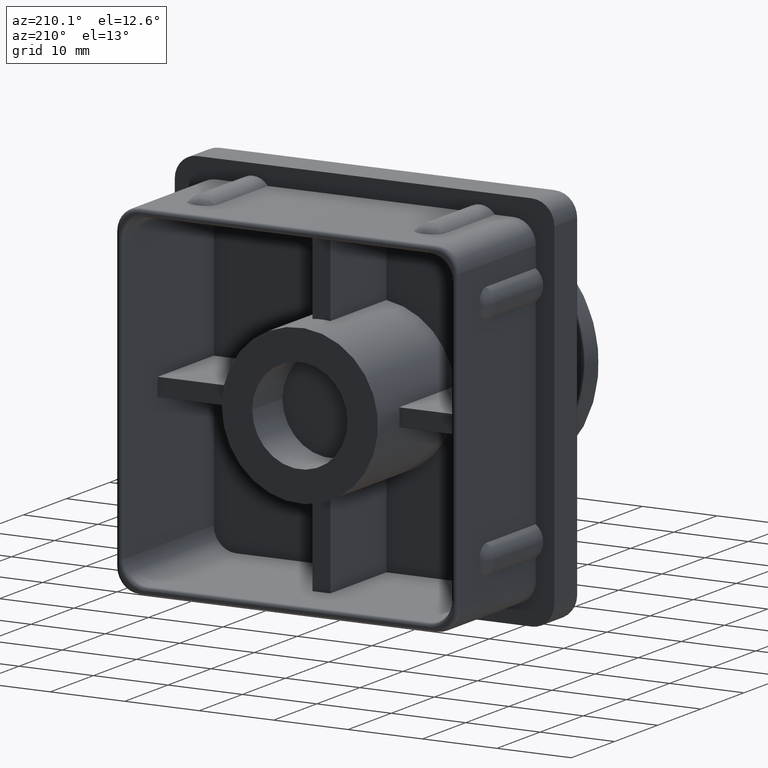
[diagram: clean part render]
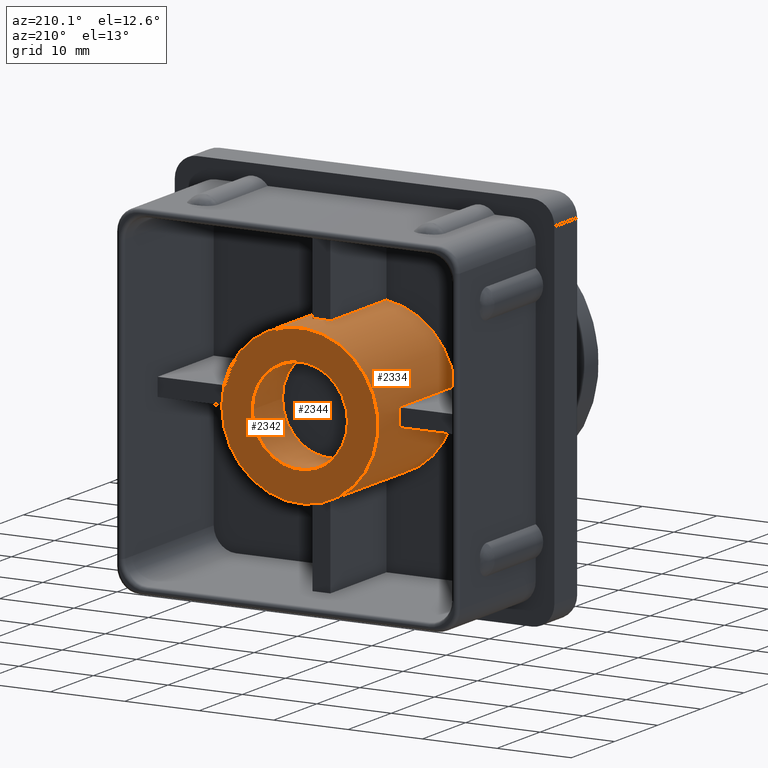
[diagram: same view with one multi-face feature highlighted, each face labeled with its STEP entity id]
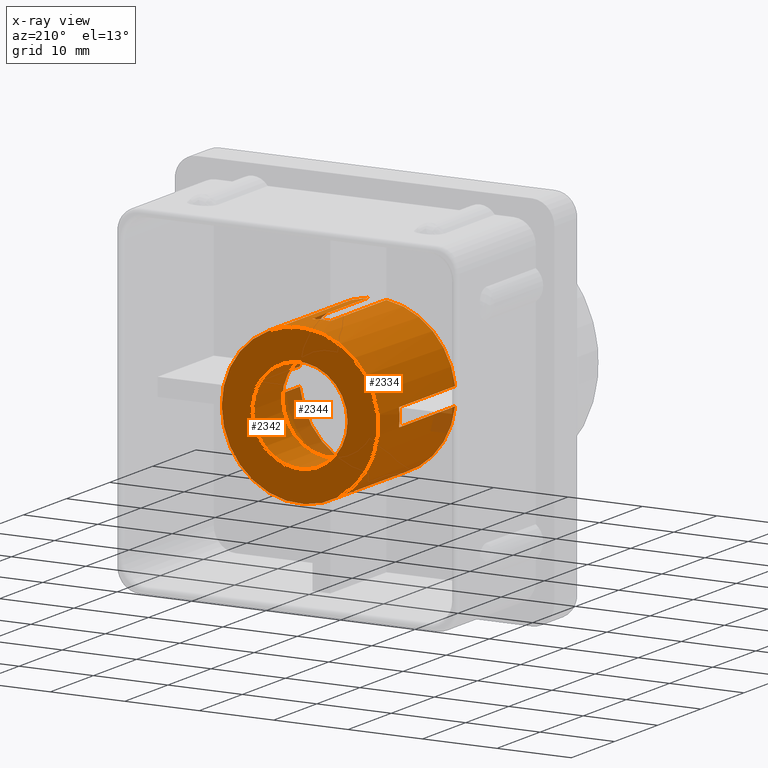
[diagram: x-ray of the same camera — body ghosted, the whole feature saturated]
A machine part, auxiliary view. The highlighted faces form ONE feature: a stepped (counterbored) hole: 2 coaxial cylindrical walls of radii 6.4 -> 10.5 mm joined by 1 annular planar shoulder face(s). The faces share edges in the B-rep.
The next image is the same camera in x-ray: the body ghosted and the whole hole feature saturated, so the bore chain is visible through the body.
Their STEP definitions:
[1] entity #2334 (Cylinder):
#55=FACE_BOUND('',#537,.T.);
#167=CIRCLE('',#2549,10.5);
#168=CIRCLE('',#2551,10.5);
#170=CIRCLE('',#2565,10.5);
#171=CIRCLE('',#2569,10.5);
#172=CIRCLE('',#2573,10.5);
#173=CIRCLE('',#2575,10.5);
#174=CIRCLE('',#2577,10.5);
#175=CIRCLE('',#2579,10.5);
#176=CIRCLE('',#2580,10.5);
#382=FACE_OUTER_BOUND('',#536,.T.);
#536=EDGE_LOOP('',(#2106));
#537=EDGE_LOOP('',(#2107,#2108,#2109,#2110,#2111,#2112,#2113,#2114,#2115,
#2116,#2117,#2118,#2119,#2120,#2121,#2122));
#705=LINE('',#5283,#877);
#707=LINE('',#5288,#879);
#710=LINE('',#5296,#882);
#713=LINE('',#5301,#885);
#715=LINE('',#5307,#887);
#718=LINE('',#5314,#890);
#725=LINE('',#5334,#897);
#726=LINE('',#5337,#898);
#877=VECTOR('',#3178,13.);
#879=VECTOR('',#3182,13.);
#882=VECTOR('',#3191,13.);
#885=VECTOR('',#3196,13.);
#887=VECTOR('',#3204,13.);
#890=VECTOR('',#3209,13.);
#897=VECTOR('',#3232,13.);
#898=VECTOR('',#3235,13.);
#1132=VERTEX_POINT('',#5239);
#1133=VERTEX_POINT('',#5241);
#1136=VERTEX_POINT('',#5249);
#1137=VERTEX_POINT('',#5251);
#1143=VERTEX_POINT('',#5282);
#1144=VERTEX_POINT('',#5286);
#1145=VERTEX_POINT('',#5287);
#1146=VERTEX_POINT('',#5294);
#1147=VERTEX_POINT('',#5295);
#1148=VERTEX_POINT('',#5300);
#1149=VERTEX_POINT('',#5306);
#1151=VERTEX_POINT('',#5312);
#1152=VERTEX_POINT('',#5313);
#1155=VERTEX_POINT('',#5327);
#1156=VERTEX_POINT('',#5331);
#1157=VERTEX_POINT('',#5333);
#1158=VERTEX_POINT('',#5335);
#1440=EDGE_CURVE('',#1132,#1133,#167,.T.);
#1445=EDGE_CURVE('',#1136,#1137,#168,.T.);
#1460=EDGE_CURVE('',#1143,#1137,#705,.T.);
#1462=EDGE_CURVE('',#1144,#1145,#707,.T.);
#1465=EDGE_CURVE('',#1145,#1143,#170,.T.);
#1466=EDGE_CURVE('',#1146,#1147,#710,.T.);
#1469=EDGE_CURVE('',#1136,#1148,#713,.T.);
#1471=EDGE_CURVE('',#1148,#1146,#171,.T.);
#1472=EDGE_CURVE('',#1149,#1133,#715,.T.);
#1475=EDGE_CURVE('',#1151,#1152,#718,.T.);
#1479=EDGE_CURVE('',#1152,#1149,#172,.T.);
#1482=EDGE_CURVE('',#1151,#1147,#173,.T.);
#1483=EDGE_CURVE('',#1144,#1155,#174,.T.);
#1485=EDGE_CURVE('',#1156,#1156,#175,.T.);
#1486=EDGE_CURVE('',#1132,#1157,#725,.T.);
#1487=EDGE_CURVE('',#1157,#1158,#176,.T.);
#1488=EDGE_CURVE('',#1158,#1155,#726,.T.);
#2106=ORIENTED_EDGE('',*,*,#1485,.T.);
#2107=ORIENTED_EDGE('',*,*,#1462,.T.);
#2108=ORIENTED_EDGE('',*,*,#1465,.T.);
#2109=ORIENTED_EDGE('',*,*,#1460,.T.);
#2110=ORIENTED_EDGE('',*,*,#1445,.F.);
#2111=ORIENTED_EDGE('',*,*,#1469,.T.);
#2112=ORIENTED_EDGE('',*,*,#1471,.T.);
#2113=ORIENTED_EDGE('',*,*,#1466,.T.);
#2114=ORIENTED_EDGE('',*,*,#1482,.F.);
#2115=ORIENTED_EDGE('',*,*,#1475,.T.);
#2116=ORIENTED_EDGE('',*,*,#1479,.T.);
#2117=ORIENTED_EDGE('',*,*,#1472,.T.);
#2118=ORIENTED_EDGE('',*,*,#1440,.F.);
#2119=ORIENTED_EDGE('',*,*,#1486,.T.);
#2120=ORIENTED_EDGE('',*,*,#1487,.T.);
#2121=ORIENTED_EDGE('',*,*,#1488,.T.);
#2122=ORIENTED_EDGE('',*,*,#1483,.F.);
#2207=CYLINDRICAL_SURFACE('',#2578,10.5);
#2334=ADVANCED_FACE('',(#382,#55),#2207,.T.);
#2549=AXIS2_PLACEMENT_3D('',#5242,#3133,#3134);
#2551=AXIS2_PLACEMENT_3D('',#5252,#3141,#3142);
#2565=AXIS2_PLACEMENT_3D('',#5292,#3187,#3188);
#2569=AXIS2_PLACEMENT_3D('',#5304,#3200,#3201);
#2573=AXIS2_PLACEMENT_3D('',#5321,#3215,#3216);
#2575=AXIS2_PLACEMENT_3D('',#5325,#3221,#3222);
#2577=AXIS2_PLACEMENT_3D('',#5328,#3225,#3226);
#2578=AXIS2_PLACEMENT_3D('',#5330,#3228,#3229);
#2579=AXIS2_PLACEMENT_3D('',#5332,#3230,#3231);
#2580=AXIS2_PLACEMENT_3D('',#5336,#3233,#3234);
#3133=DIRECTION('center_axis',(0.,-1.,0.));
#3134=DIRECTION('ref_axis',(-1.,0.,0.));
#3141=DIRECTION('center_axis',(0.,-1.,0.));
#3142=DIRECTION('ref_axis',(-1.,0.,0.));
#3178=DIRECTION('',(0.,-1.,0.));
#3182=DIRECTION('',(0.,1.,0.));
#3187=DIRECTION('center_axis',(0.,1.,0.));
#3188=DIRECTION('ref_axis',(-1.,0.,0.));
#3191=DIRECTION('',(0.,-1.,0.));
#3196=DIRECTION('',(0.,1.,0.));
#3200=DIRECTION('center_axis',(0.,1.,0.));
#3201=DIRECTION('ref_axis',(-1.,0.,0.));
#3204=DIRECTION('',(0.,-1.,0.));
#3209=DIRECTION('',(0.,1.,0.));
#3215=DIRECTION('center_axis',(0.,1.,0.));
#3216=DIRECTION('ref_axis',(-1.,0.,0.));
#3221=DIRECTION('center_axis',(0.,-1.,0.));
#3222=DIRECTION('ref_axis',(-1.,0.,0.));
#3225=DIRECTION('center_axis',(0.,-1.,0.));
#3226=DIRECTION('ref_axis',(-1.,0.,0.));
#3228=DIRECTION('center_axis',(0.,-1.,0.));
#3229=DIRECTION('ref_axis',(-1.,0.,0.));
#3230=DIRECTION('center_axis',(0.,-1.,0.));
#3231=DIRECTION('ref_axis',(-1.,0.,0.));
#3232=DIRECTION('',(0.,1.,0.));
#3233=DIRECTION('center_axis',(0.,1.,0.));
#3234=DIRECTION('ref_axis',(-1.,0.,0.));
#3235=DIRECTION('',(0.,-1.,0.));
#5239=CARTESIAN_POINT('',(10.4312031904282,-3.,1.2));
#5241=CARTESIAN_POINT('',(1.2,-3.,10.4312031904282));
#5242=CARTESIAN_POINT('Origin',(0.,-3.,0.));
#5249=CARTESIAN_POINT('',(-10.4312031904282,-3.,-1.2));
#5251=CARTESIAN_POINT('',(-1.2,-3.,-10.4312031904282));
#5252=CARTESIAN_POINT('Origin',(0.,-3.,0.));
#5282=CARTESIAN_POINT('',(-1.2,10.,-10.4312031904282));
#5283=CARTESIAN_POINT('',(-1.2,15.,-10.4312031904282));
#5286=CARTESIAN_POINT('',(1.2,-3.,-10.4312031904282));
#5287=CARTESIAN_POINT('',(1.2,10.,-10.4312031904282));
#5288=CARTESIAN_POINT('',(1.2,15.,-10.4312031904282));
#5292=CARTESIAN_POINT('Origin',(0.,10.,0.));
#5294=CARTESIAN_POINT('',(-10.4312031904282,10.,1.2));
#5295=CARTESIAN_POINT('',(-10.4312031904282,-3.,1.2));
#5296=CARTESIAN_POINT('',(-10.4312031904282,15.,1.2));
#5300=CARTESIAN_POINT('',(-10.4312031904282,10.,-1.2));
#5301=CARTESIAN_POINT('',(-10.4312031904282,15.,-1.2));
#5304=CARTESIAN_POINT('Origin',(0.,10.,0.));
#5306=CARTESIAN_POINT('',(1.2,10.,10.4312031904282));
#5307=CARTESIAN_POINT('',(1.2,15.,10.4312031904282));
#5312=CARTESIAN_POINT('',(-1.2,-3.,10.4312031904282));
#5313=CARTESIAN_POINT('',(-1.2,10.,10.4312031904282));
#5314=CARTESIAN_POINT('',(-1.2,15.,10.4312031904282));
#5321=CARTESIAN_POINT('Origin',(0.,10.,0.));
#5325=CARTESIAN_POINT('Origin',(0.,-3.,0.));
#5327=CARTESIAN_POINT('',(10.4312031904282,-3.,-1.2));
#5328=CARTESIAN_POINT('Origin',(0.,-3.,0.));
#5330=CARTESIAN_POINT('Origin',(0.,15.,0.));
#5331=CARTESIAN_POINT('',(10.5,15.,-1.28587913910472E-15));
#5332=CARTESIAN_POINT('Origin',(0.,15.,0.));
#5333=CARTESIAN_POINT('',(10.4312031904282,10.,1.2));
#5334=CARTESIAN_POINT('',(10.4312031904282,15.,1.2));
#5335=CARTESIAN_POINT('',(10.4312031904282,10.,-1.2));
#5336=CARTESIAN_POINT('Origin',(0.,10.,0.));
#5337=CARTESIAN_POINT('',(10.4312031904282,15.,-1.2));
[2] entity #2342 (Cylinder):
#60=FACE_BOUND('',#550,.T.);
#181=CIRCLE('',#2593,6.4);
#182=CIRCLE('',#2594,6.4);
#390=FACE_OUTER_BOUND('',#549,.T.);
#549=EDGE_LOOP('',(#2143));
#550=EDGE_LOOP('',(#2144));
#1163=VERTEX_POINT('',#5356);
#1164=VERTEX_POINT('',#5358);
#1495=EDGE_CURVE('',#1163,#1163,#181,.T.);
#1496=EDGE_CURVE('',#1164,#1164,#182,.T.);
#2143=ORIENTED_EDGE('',*,*,#1495,.T.);
#2144=ORIENTED_EDGE('',*,*,#1496,.F.);
#2210=CYLINDRICAL_SURFACE('',#2592,6.4);
#2342=ADVANCED_FACE('',(#390,#60),#2210,.F.);
#2592=AXIS2_PLACEMENT_3D('',#5355,#3260,#3261);
#2593=AXIS2_PLACEMENT_3D('',#5357,#3262,#3263);
#2594=AXIS2_PLACEMENT_3D('',#5359,#3264,#3265);
#3260=DIRECTION('center_axis',(0.,-1.,0.));
#3261=DIRECTION('ref_axis',(-1.,0.,0.));
#3262=DIRECTION('center_axis',(0.,-1.,0.));
#3263=DIRECTION('ref_axis',(-1.,0.,0.));
#3264=DIRECTION('center_axis',(0.,-1.,0.));
#3265=DIRECTION('ref_axis',(-1.,0.,0.));
#5355=CARTESIAN_POINT('Origin',(0.,15.,0.));
#5356=CARTESIAN_POINT('',(6.4,8.,-7.83773951454306E-16));
#5357=CARTESIAN_POINT('Origin',(0.,8.,0.));
#5358=CARTESIAN_POINT('',(6.4,15.,-7.83773951454306E-16));
#5359=CARTESIAN_POINT('Origin',(0.,15.,0.));
[3] entity #2344 (Plane):
#62=FACE_BOUND('',#554,.T.);
#175=CIRCLE('',#2579,10.5);
#182=CIRCLE('',#2594,6.4);
#256=PLANE('',#2596);
#392=FACE_OUTER_BOUND('',#553,.T.);
#553=EDGE_LOOP('',(#2147));
#554=EDGE_LOOP('',(#2148));
#1156=VERTEX_POINT('',#5331);
#1164=VERTEX_POINT('',#5358);
#1485=EDGE_CURVE('',#1156,#1156,#175,.T.);
#1496=EDGE_CURVE('',#1164,#1164,#182,.T.);
#2147=ORIENTED_EDGE('',*,*,#1485,.F.);
#2148=ORIENTED_EDGE('',*,*,#1496,.T.);
#2344=ADVANCED_FACE('',(#392,#62),#256,.T.);
#2579=AXIS2_PLACEMENT_3D('',#5332,#3230,#3231);
#2594=AXIS2_PLACEMENT_3D('',#5359,#3264,#3265);
#2596=AXIS2_PLACEMENT_3D('',#5361,#3268,#3269);
#3230=DIRECTION('center_axis',(0.,-1.,0.));
#3231=DIRECTION('ref_axis',(-1.,0.,0.));
#3264=DIRECTION('center_axis',(0.,-1.,0.));
#3265=DIRECTION('ref_axis',(-1.,0.,0.));
#3268=DIRECTION('center_axis',(0.,1.,0.));
#3269=DIRECTION('ref_axis',(0.,0.,1.));
#5331=CARTESIAN_POINT('',(10.5,15.,-1.28587913910472E-15));
#5332=CARTESIAN_POINT('Origin',(0.,15.,0.));
#5358=CARTESIAN_POINT('',(6.4,15.,-7.83773951454306E-16));
#5359=CARTESIAN_POINT('Origin',(0.,15.,0.));
#5361=CARTESIAN_POINT('Origin',(-4.5960834877465E-16,15.,-1.76225876924628E-16));